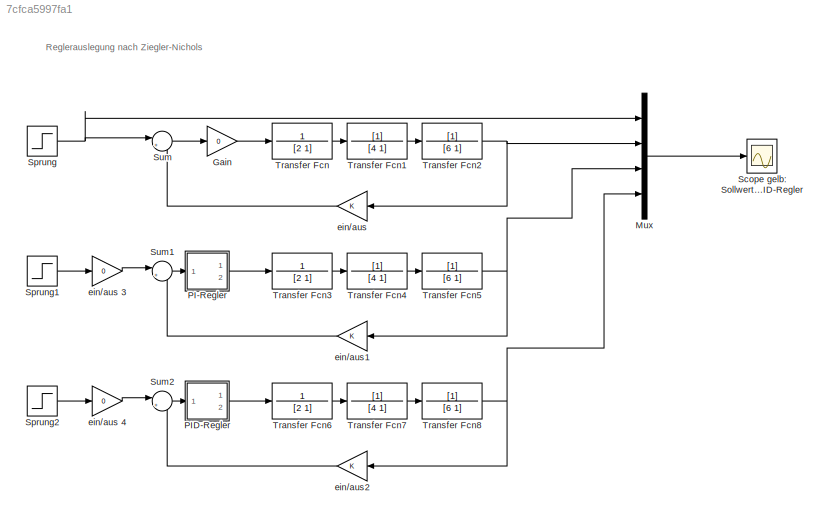
MODEL slx_7cfca5997fa1
KIND model
CONFIG AbsTol = auto
CONFIG FixedStep = 0.1
CONFIG MaxStep = auto
CONFIG MinStep = auto
CONFIG RelTol = 1e-3
CONFIG SampleTimeConstraint = Unconstrained
CONFIG Solver = ode3
CONFIG SolverMode = Auto
CONFIG SolverName = ode3
CONFIG StartTime = 0.0
CONFIG StopTime = 100
BLOCK [Gain] Gain
  Gain = 0
  OutDataTypeStr = Inherit: Inherit via internal rule
  ParamDataTypeStr = Inherit: Inherit via internal rule
  SaturateOnIntegerOverflow = off
BLOCK [Mux] Mux
  DisplayOption = bar
  Ports = [4, 1]
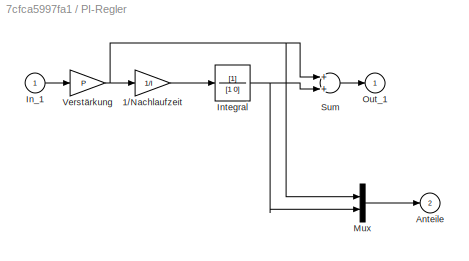
BLOCK [SubSystem] PI-Regler
  Ports = [1, 2]
  RequestExecContextInheritance = off
  Variant = off
BLOCK [Gain] PI-Regler/1//Nachlaufzeit
  Gain = 1/I
BLOCK [Outport] PI-Regler/Anteile
  IconDisplay = Port number
  InitialOutput = 0
  Port = 2
BLOCK [Inport] PI-Regler/In_1
  IconDisplay = Port number
BLOCK [TransferFcn] PI-Regler/Integral
  Denominator = [1 0]
BLOCK [Mux] PI-Regler/Mux
  DisplayOption = bar
  Inputs = 2
  Ports = [2, 1]
BLOCK [Outport] PI-Regler/Out_1
  IconDisplay = Port number
  InitialOutput = 0
BLOCK [Sum] PI-Regler/Sum
  Ports = [2, 1]
BLOCK [Gain] PI-Regler/Verstärkung
  Gain = P
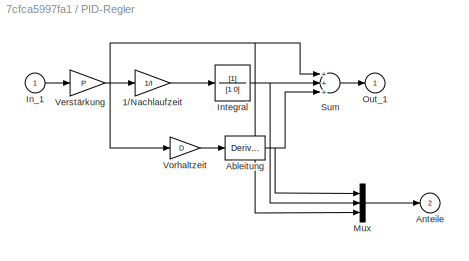
BLOCK [SubSystem] PID-Regler
  Ports = [1, 2]
  RequestExecContextInheritance = off
  Variant = off
BLOCK [Gain] PID-Regler/1//Nachlaufzeit
  Gain = 1/I
BLOCK [Derivative] PID-Regler/Ableitung
BLOCK [Outport] PID-Regler/Anteile
  IconDisplay = Port number
  InitialOutput = 0
  Port = 2
BLOCK [Inport] PID-Regler/In_1
  IconDisplay = Port number
BLOCK [TransferFcn] PID-Regler/Integral
  Denominator = [1 0]
BLOCK [Mux] PID-Regler/Mux
  DisplayOption = bar
  Inputs = 3
  Ports = [3, 1]
BLOCK [Outport] PID-Regler/Out_1
  IconDisplay = Port number
  InitialOutput = 0
BLOCK [Sum] PID-Regler/Sum
  Inputs = +++
  Ports = [3, 1]
BLOCK [Gain] PID-Regler/Verstärkung
  Gain = P
BLOCK [Gain] PID-Regler/Vorhaltzeit
  Gain = D
BLOCK [Scope] Scope gelb: Sollwert Magenta: P-Regler Cyan: PI-Regler Rot: PID-Regler
  Ports = [1]
  ScopeSpecificationString = Simulink.scopes.TimeScopeBlockCfg('CurrentConfiguration', extmgr.ConfigurationSet(extmgr.Configuration('Core','General UI',true),extmgr.Configuration('Core','Source UI',true),extmgr.Configuration('Sources','WiredSimulink',true,'DataLoggingSaveFormat','StructureWithTime','DataLoggingLimitDataPoints',true,'DataLoggingDecimation','1','DataLoggingDecimateData',true),extmgr.Configuration('Visuals','Tim...<+1771ch>
BLOCK [Step] Sprung
  SampleTime = 0
BLOCK [Step] Sprung1
  SampleTime = 0
BLOCK [Step] Sprung2
  SampleTime = 0
BLOCK [Sum] Sum
  IconShape = round
  InputSameDT = off
  Inputs = |+-
  OutDataTypeStr = Inherit: Inherit via internal rule
  Ports = [2, 1]
  SaturateOnIntegerOverflow = off
BLOCK [Sum] Sum1
  IconShape = round
  InputSameDT = off
  Inputs = |+-
  OutDataTypeStr = Inherit: Inherit via internal rule
  Ports = [2, 1]
  SaturateOnIntegerOverflow = off
BLOCK [Sum] Sum2
  IconShape = round
  InputSameDT = off
  Inputs = |+-
  OutDataTypeStr = Inherit: Inherit via internal rule
  Ports = [2, 1]
  SaturateOnIntegerOverflow = off
BLOCK [TransferFcn] Transfer Fcn
  Denominator = [2 1]
  Numerator = 1
BLOCK [TransferFcn] Transfer Fcn1
  Denominator = [4 1]
BLOCK [TransferFcn] Transfer Fcn2
  Denominator = [6 1]
BLOCK [TransferFcn] Transfer Fcn3
  Denominator = [2 1]
  Numerator = 1
BLOCK [TransferFcn] Transfer Fcn4
  Denominator = [4 1]
BLOCK [TransferFcn] Transfer Fcn5
  Denominator = [6 1]
BLOCK [TransferFcn] Transfer Fcn6
  Denominator = [2 1]
  Numerator = 1
BLOCK [TransferFcn] Transfer Fcn7
  Denominator = [4 1]
BLOCK [TransferFcn] Transfer Fcn8
  Denominator = [6 1]
BLOCK [Gain] ein//aus
  OutDataTypeStr = Inherit: Inherit via internal rule
  ParamDataTypeStr = Inherit: Inherit via internal rule
  SaturateOnIntegerOverflow = off
BLOCK [Gain] ein//aus 3
  Gain = 0
  OutDataTypeStr = Inherit: Inherit via internal rule
  ParamDataTypeStr = Inherit: Inherit via internal rule
  SaturateOnIntegerOverflow = off
BLOCK [Gain] ein//aus 4
  Gain = 0
  OutDataTypeStr = Inherit: Inherit via internal rule
  ParamDataTypeStr = Inherit: Inherit via internal rule
  SaturateOnIntegerOverflow = off
BLOCK [Gain] ein//aus1
  OutDataTypeStr = Inherit: Inherit via internal rule
  ParamDataTypeStr = Inherit: Inherit via internal rule
  SaturateOnIntegerOverflow = off
BLOCK [Gain] ein//aus2
  OutDataTypeStr = Inherit: Inherit via internal rule
  ParamDataTypeStr = Inherit: Inherit via internal rule
  SaturateOnIntegerOverflow = off
ANNOTATION (root): Reglerauslegung nach Ziegler-Nichols
LINE Gain:1 -> Transfer Fcn:1
LINE Mux:1 -> Scope gelb: Sollwert Magenta: P-Regler Cyan: PI-Regler Rot: PID-Regler:1
LINE PI-Regler/1//Nachlaufzeit:1 -> PI-Regler/Integral:1
LINE PI-Regler/In_1:1 -> PI-Regler/Verstärkung:1
NET PI-Regler/Integral:1 -> PI-Regler/Mux:2, PI-Regler/Sum:2
LINE PI-Regler/Mux:1 -> PI-Regler/Anteile:1
LINE PI-Regler/Sum:1 -> PI-Regler/Out_1:1
NET PI-Regler/Verstärkung:1 -> PI-Regler/1//Nachlaufzeit:1, PI-Regler/Mux:1, PI-Regler/Sum:1
LINE PI-Regler:1 -> Transfer Fcn3:1
LINE PID-Regler/1//Nachlaufzeit:1 -> PID-Regler/Integral:1
NET PID-Regler/Ableitung:1 -> PID-Regler/Mux:1, PID-Regler/Sum:3
LINE PID-Regler/In_1:1 -> PID-Regler/Verstärkung:1
NET PID-Regler/Integral:1 -> PID-Regler/Mux:2, PID-Regler/Sum:2
LINE PID-Regler/Mux:1 -> PID-Regler/Anteile:1
LINE PID-Regler/Sum:1 -> PID-Regler/Out_1:1
NET PID-Regler/Verstärkung:1 -> PID-Regler/1//Nachlaufzeit:1, PID-Regler/Mux:3, PID-Regler/Sum:1, PID-Regler/Vorhaltzeit:1
LINE PID-Regler/Vorhaltzeit:1 -> PID-Regler/Ableitung:1
LINE PID-Regler:1 -> Transfer Fcn6:1
LINE Sprung1:1 -> ein//aus 3:1
LINE Sprung2:1 -> ein//aus 4:1
NET Sprung:1 -> Mux:1, Sum:1
LINE Sum1:1 -> PI-Regler:1
LINE Sum2:1 -> PID-Regler:1
LINE Sum:1 -> Gain:1
LINE Transfer Fcn1:1 -> Transfer Fcn2:1
NET Transfer Fcn2:1 -> Mux:2, ein//aus:1
LINE Transfer Fcn3:1 -> Transfer Fcn4:1
LINE Transfer Fcn4:1 -> Transfer Fcn5:1
NET Transfer Fcn5:1 -> Mux:3, ein//aus1:1
LINE Transfer Fcn6:1 -> Transfer Fcn7:1
LINE Transfer Fcn7:1 -> Transfer Fcn8:1
NET Transfer Fcn8:1 -> Mux:4, ein//aus2:1
LINE Transfer Fcn:1 -> Transfer Fcn1:1
LINE ein//aus 3:1 -> Sum1:1
LINE ein//aus 4:1 -> Sum2:1
LINE ein//aus1:1 -> Sum1:2
LINE ein//aus2:1 -> Sum2:2
LINE ein//aus:1 -> Sum:2
note: NET lines group one-source signal fan-out (src -> all destinations, sorted); 1:1 wires keep LINE
